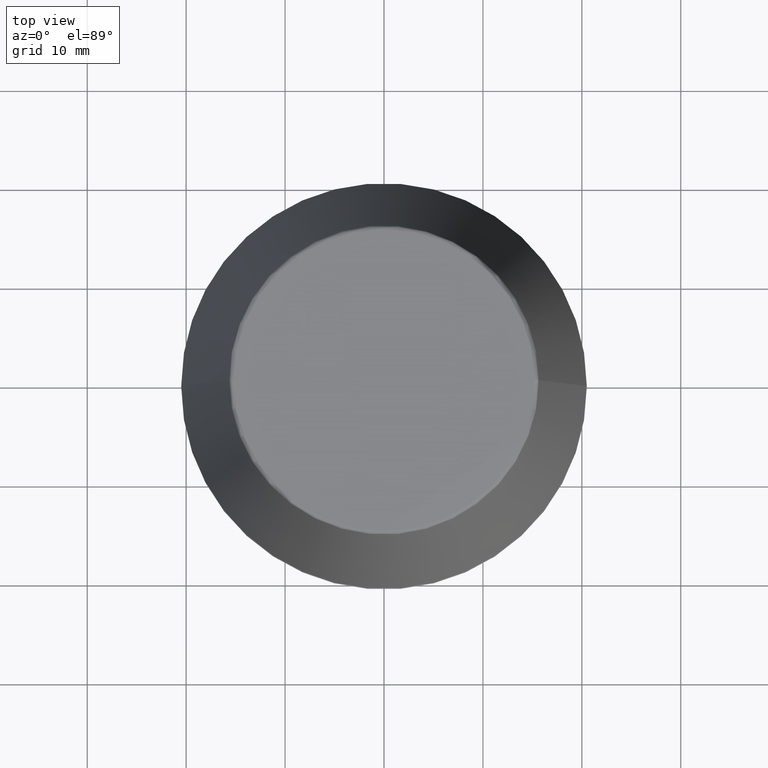
[diagram: clean part render]
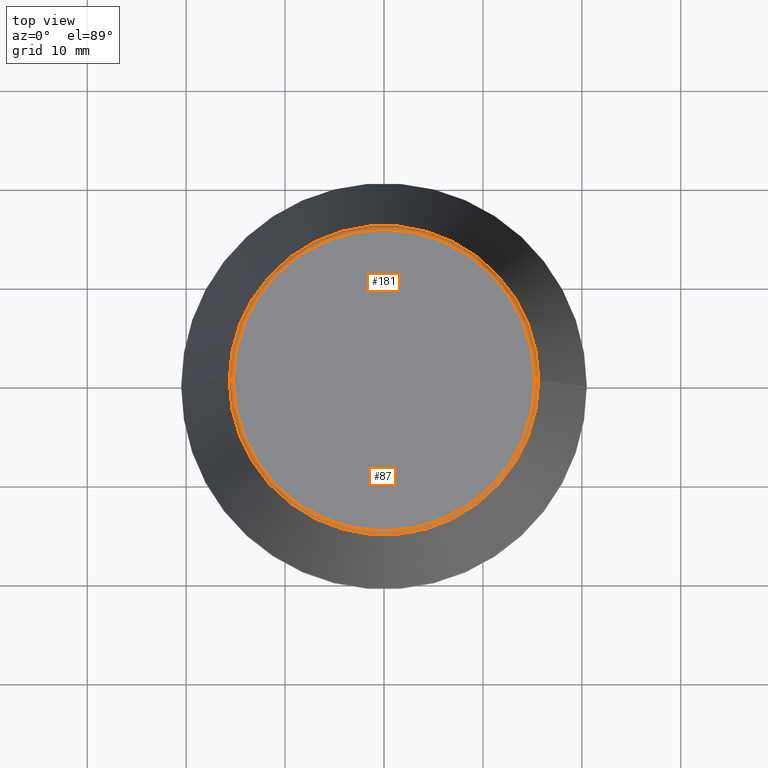
[diagram: same view with one multi-face feature highlighted, each face labeled with its STEP entity id]
A machine part, top view. The highlighted faces form ONE feature: a constant-radius fillet chain: 2 tangent blend faces with common blend radius 0.4 mm. The faces share edges in the B-rep.
Their STEP definitions:
[1] entity #87 (Torus):
#2 = DIRECTION ( 'NONE',  ( 1.224646799147353200E-016, 1.000000000000000000, 0.0000000000000000000 ) ) ;
#5 = DIRECTION ( 'NONE',  ( -0.0000000000000000000, -0.0000000000000000000, 1.000000000000000000 ) ) ;
#9 = AXIS2_PLACEMENT_3D ( 'NONE', #52, #235, #18 ) ;
#12 = CARTESIAN_POINT ( 'NONE',  ( 0.0000000000000000000, 0.0000000000000000000, 46.00000000000000000 ) ) ;
#15 = VERTEX_POINT ( 'NONE', #64 ) ;
#18 = DIRECTION ( 'NONE',  ( 0.0000000000000000000, 0.0000000000000000000, -1.000000000000000000 ) ) ;
#26 = VERTEX_POINT ( 'NONE', #280 ) ;
#42 = DIRECTION ( 'NONE',  ( -0.0000000000000000000, -0.0000000000000000000, 1.000000000000000000 ) ) ;
#48 = FACE_OUTER_BOUND ( 'NONE', #170, .T. ) ;
#52 = CARTESIAN_POINT ( 'NONE',  ( 15.24773554530077600, 0.0000000000000000000, 45.60000000000000100 ) ) ;
#53 = AXIS2_PLACEMENT_3D ( 'NONE', #222, #2, #192 ) ;
#64 = CARTESIAN_POINT ( 'NONE',  ( 15.64384277279740400, 2.213191991290356800E-015, 45.65566924038402900 ) ) ;
#73 = DIRECTION ( 'NONE',  ( 1.000000000000000000, 0.0000000000000000000, 0.0000000000000000000 ) ) ;
#76 = CIRCLE ( 'NONE', #53, 0.3999999999999975800 ) ;
#87 = ADVANCED_FACE ( 'NONE', ( #48 ), #293, .T. ) ;
#104 = CIRCLE ( 'NONE', #205, 15.24773554530077600 ) ;
#105 = DIRECTION ( 'NONE',  ( 1.000000000000000000, 0.0000000000000000000, 0.0000000000000000000 ) ) ;
#116 = ORIENTED_EDGE ( 'NONE', *, *, #207, .T. ) ;
#127 = EDGE_CURVE ( 'NONE', #26, #165, #104, .T. ) ;
#133 = DIRECTION ( 'NONE',  ( -0.0000000000000000000, -0.0000000000000000000, 1.000000000000000000 ) ) ;
#158 = CARTESIAN_POINT ( 'NONE',  ( 0.0000000000000000000, 0.0000000000000000000, 45.60000000000000100 ) ) ;
#165 = VERTEX_POINT ( 'NONE', #203 ) ;
#170 = EDGE_LOOP ( 'NONE', ( #201, #367, #116, #176 ) ) ;
#176 = ORIENTED_EDGE ( 'NONE', *, *, #127, .F. ) ;
#192 = DIRECTION ( 'NONE',  ( -1.000000000000000000, 1.224646799147353900E-016, 0.0000000000000000000 ) ) ;
#195 = CIRCLE ( 'NONE', #9, 0.3999999999999975800 ) ;
#201 = ORIENTED_EDGE ( 'NONE', *, *, #320, .F. ) ;
#203 = CARTESIAN_POINT ( 'NONE',  ( 15.24773554530077600, 0.0000000000000000000, 46.00000000000000000 ) ) ;
#205 = AXIS2_PLACEMENT_3D ( 'NONE', #12, #42, #311 ) ;
#207 = EDGE_CURVE ( 'NONE', #15, #165, #195, .T. ) ;
#212 = EDGE_CURVE ( 'NONE', #232, #15, #377, .T. ) ;
#222 = CARTESIAN_POINT ( 'NONE',  ( -15.24773554530077600, 1.867309052979791600E-015, 45.60000000000000100 ) ) ;
#227 = AXIS2_PLACEMENT_3D ( 'NONE', #158, #5, #73 ) ;
#232 = VERTEX_POINT ( 'NONE', #290 ) ;
#235 = DIRECTION ( 'NONE',  ( 0.0000000000000000000, -1.000000000000000000, 0.0000000000000000000 ) ) ;
#254 = AXIS2_PLACEMENT_3D ( 'NONE', #338, #133, #105 ) ;
#280 = CARTESIAN_POINT ( 'NONE',  ( -15.24773554530077600, 1.891563625393435400E-015, 46.00000000000000000 ) ) ;
#290 = CARTESIAN_POINT ( 'NONE',  ( -15.64384277279740400, 0.0000000000000000000, 45.65566924038402900 ) ) ;
#293 = TOROIDAL_SURFACE ( 'NONE', #227, 15.24773554530077600, 0.3999999999999991900 ) ;
#311 = DIRECTION ( 'NONE',  ( 1.000000000000000000, 0.0000000000000000000, 0.0000000000000000000 ) ) ;
#320 = EDGE_CURVE ( 'NONE', #232, #26, #76, .T. ) ;
#338 = CARTESIAN_POINT ( 'NONE',  ( 0.0000000000000000000, 0.0000000000000000000, 45.65566924038402900 ) ) ;
#367 = ORIENTED_EDGE ( 'NONE', *, *, #212, .T. ) ;
#377 = CIRCLE ( 'NONE', #254, 15.64384277279740400 ) ;
[2] entity #181 (Torus):
#2 = DIRECTION ( 'NONE',  ( 1.224646799147353200E-016, 1.000000000000000000, 0.0000000000000000000 ) ) ;
#9 = AXIS2_PLACEMENT_3D ( 'NONE', #52, #235, #18 ) ;
#11 = FACE_OUTER_BOUND ( 'NONE', #168, .T. ) ;
#15 = VERTEX_POINT ( 'NONE', #64 ) ;
#17 = EDGE_CURVE ( 'NONE', #165, #26, #155, .T. ) ;
#18 = DIRECTION ( 'NONE',  ( 0.0000000000000000000, 0.0000000000000000000, -1.000000000000000000 ) ) ;
#20 = DIRECTION ( 'NONE',  ( 1.000000000000000000, 0.0000000000000000000, 0.0000000000000000000 ) ) ;
#26 = VERTEX_POINT ( 'NONE', #280 ) ;
#52 = CARTESIAN_POINT ( 'NONE',  ( 15.24773554530077600, 0.0000000000000000000, 45.60000000000000100 ) ) ;
#53 = AXIS2_PLACEMENT_3D ( 'NONE', #222, #2, #192 ) ;
#64 = CARTESIAN_POINT ( 'NONE',  ( 15.64384277279740400, 2.213191991290356800E-015, 45.65566924038402900 ) ) ;
#65 = AXIS2_PLACEMENT_3D ( 'NONE', #190, #354, #148 ) ;
#76 = CIRCLE ( 'NONE', #53, 0.3999999999999975800 ) ;
#82 = CARTESIAN_POINT ( 'NONE',  ( 0.0000000000000000000, 0.0000000000000000000, 45.60000000000000100 ) ) ;
#138 = TOROIDAL_SURFACE ( 'NONE', #283, 15.24773554530077600, 0.3999999999999991900 ) ;
#148 = DIRECTION ( 'NONE',  ( 1.000000000000000000, 0.0000000000000000000, 0.0000000000000000000 ) ) ;
#155 = CIRCLE ( 'NONE', #288, 15.24773554530077600 ) ;
#165 = VERTEX_POINT ( 'NONE', #203 ) ;
#168 = EDGE_LOOP ( 'NONE', ( #336, #321, #362, #322 ) ) ;
#181 = ADVANCED_FACE ( 'NONE', ( #11 ), #138, .T. ) ;
#190 = CARTESIAN_POINT ( 'NONE',  ( 0.0000000000000000000, 0.0000000000000000000, 45.65566924038402900 ) ) ;
#192 = DIRECTION ( 'NONE',  ( -1.000000000000000000, 1.224646799147353900E-016, 0.0000000000000000000 ) ) ;
#195 = CIRCLE ( 'NONE', #9, 0.3999999999999975800 ) ;
#203 = CARTESIAN_POINT ( 'NONE',  ( 15.24773554530077600, 0.0000000000000000000, 46.00000000000000000 ) ) ;
#207 = EDGE_CURVE ( 'NONE', #15, #165, #195, .T. ) ;
#217 = CARTESIAN_POINT ( 'NONE',  ( 0.0000000000000000000, 0.0000000000000000000, 46.00000000000000000 ) ) ;
#220 = DIRECTION ( 'NONE',  ( -0.0000000000000000000, -0.0000000000000000000, 1.000000000000000000 ) ) ;
#222 = CARTESIAN_POINT ( 'NONE',  ( -15.24773554530077600, 1.867309052979791600E-015, 45.60000000000000100 ) ) ;
#232 = VERTEX_POINT ( 'NONE', #290 ) ;
#235 = DIRECTION ( 'NONE',  ( 0.0000000000000000000, -1.000000000000000000, 0.0000000000000000000 ) ) ;
#237 = DIRECTION ( 'NONE',  ( -0.0000000000000000000, -0.0000000000000000000, 1.000000000000000000 ) ) ;
#280 = CARTESIAN_POINT ( 'NONE',  ( -15.24773554530077600, 1.891563625393435400E-015, 46.00000000000000000 ) ) ;
#283 = AXIS2_PLACEMENT_3D ( 'NONE', #82, #237, #20 ) ;
#288 = AXIS2_PLACEMENT_3D ( 'NONE', #217, #220, #347 ) ;
#290 = CARTESIAN_POINT ( 'NONE',  ( -15.64384277279740400, 0.0000000000000000000, 45.65566924038402900 ) ) ;
#320 = EDGE_CURVE ( 'NONE', #232, #26, #76, .T. ) ;
#321 = ORIENTED_EDGE ( 'NONE', *, *, #320, .T. ) ;
#322 = ORIENTED_EDGE ( 'NONE', *, *, #207, .F. ) ;
#325 = CIRCLE ( 'NONE', #65, 15.64384277279740400 ) ;
#336 = ORIENTED_EDGE ( 'NONE', *, *, #346, .T. ) ;
#346 = EDGE_CURVE ( 'NONE', #15, #232, #325, .T. ) ;
#347 = DIRECTION ( 'NONE',  ( 1.000000000000000000, 0.0000000000000000000, 0.0000000000000000000 ) ) ;
#354 = DIRECTION ( 'NONE',  ( -0.0000000000000000000, -0.0000000000000000000, 1.000000000000000000 ) ) ;
#362 = ORIENTED_EDGE ( 'NONE', *, *, #17, .F. ) ;